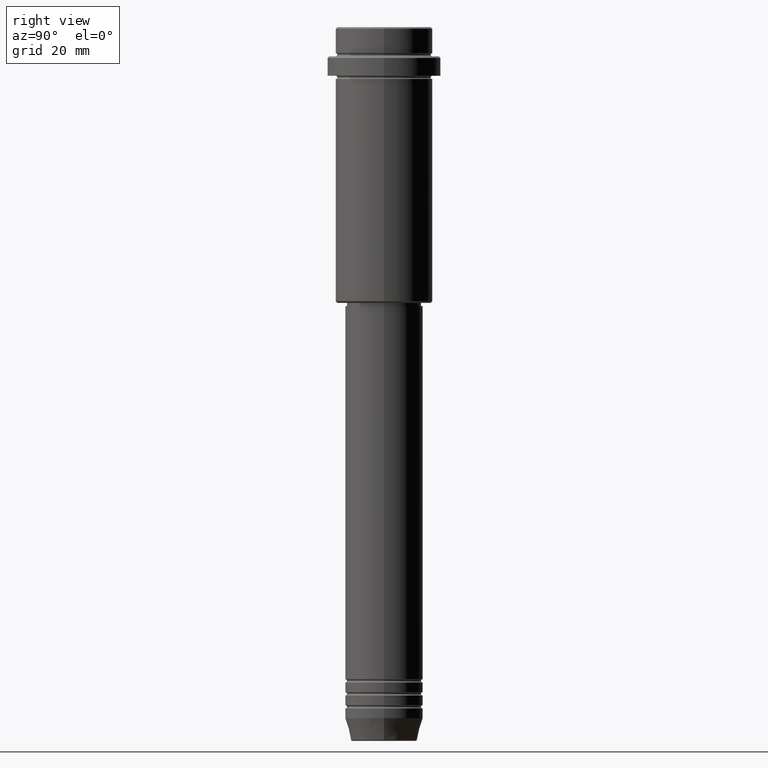
[diagram: clean part render]
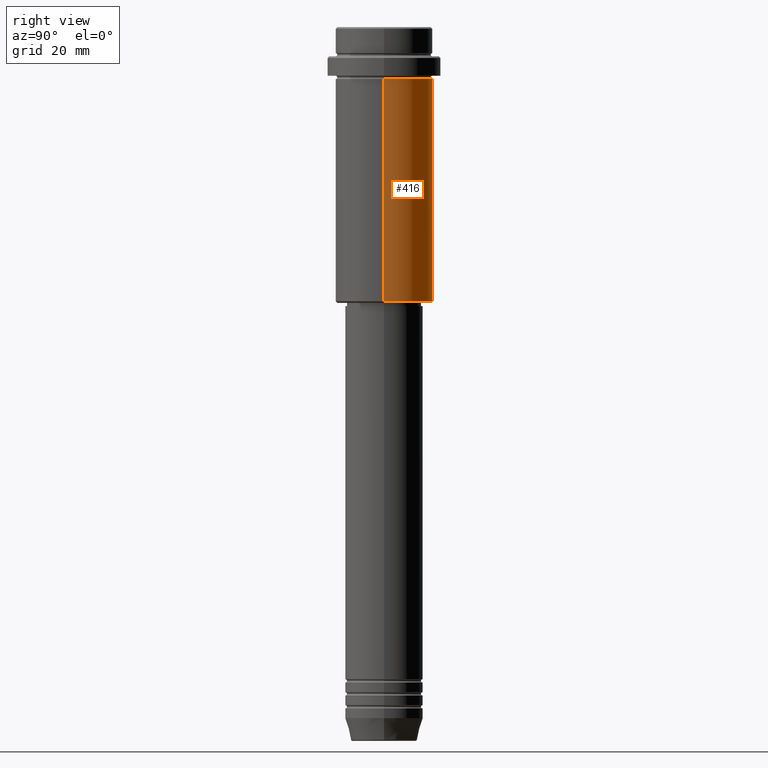
[diagram: same view with one face highlighted and labeled with its STEP entity id]
A machine part, right view. The second image highlights one B-rep face of the part: STEP entity #416.
In plain terms, the highlighted cylindrical surface (partial cylindrical patch) has radius 15 mm, axis along (-0, -0, 1).
Its self-contained STEP definition (entity closure, byte-faithful):
#25 = LINE ( 'NONE', #1326, #1128 ) ;
#31 = ORIENTED_EDGE ( 'NONE', *, *, #322, .F. ) ;
#72 = EDGE_LOOP ( 'NONE', ( #412, #192, #481, #31 ) ) ;
#121 = AXIS2_PLACEMENT_3D ( 'NONE', #1331, #454, #900 ) ;
#128 = AXIS2_PLACEMENT_3D ( 'NONE', #1301, #1393, #758 ) ;
#169 = DIRECTION ( 'NONE',  ( -0.000000000000000000, -0.000000000000000000, 1.000000000000000000 ) ) ;
#185 = CARTESIAN_POINT ( 'NONE',  ( 0.000000000000000000, 0.000000000000000000, -16.00000000000000000 ) ) ;
#192 = ORIENTED_EDGE ( 'NONE', *, *, #1385, .T. ) ;
#212 = LINE ( 'NONE', #874, #258 ) ;
#258 = VECTOR ( 'NONE', #1205, 1000.000000000000000 ) ;
#322 = EDGE_CURVE ( 'NONE', #1209, #1106, #212, .T. ) ;
#356 = CIRCLE ( 'NONE', #128, 15.00000000000000000 ) ;
#366 = CYLINDRICAL_SURFACE ( 'NONE', #121, 15.00000000000000000 ) ;
#412 = ORIENTED_EDGE ( 'NONE', *, *, #1231, .T. ) ;
#416 = ADVANCED_FACE ( 'NONE', ( #1340 ), #366, .T. ) ;
#454 = DIRECTION ( 'NONE',  ( -0.000000000000000000, -0.000000000000000000, 1.000000000000000000 ) ) ;
#475 = CARTESIAN_POINT ( 'NONE',  ( -15.00000000000000000, 1.836970198721029589E-15, -84.50000000000002842 ) ) ;
#481 = ORIENTED_EDGE ( 'NONE', *, *, #1024, .F. ) ;
#486 = CIRCLE ( 'NONE', #1353, 15.00000000000000178 ) ;
#490 = DIRECTION ( 'NONE',  ( 1.000000000000000000, 0.000000000000000000, 0.000000000000000000 ) ) ;
#657 = CARTESIAN_POINT ( 'NONE',  ( 15.00000000000000000, 0.000000000000000000, -84.50000000000002842 ) ) ;
#662 = VERTEX_POINT ( 'NONE', #717 ) ;
#717 = CARTESIAN_POINT ( 'NONE',  ( -15.00000000000000355, 1.836970198721029983E-15, -16.00000000000000000 ) ) ;
#758 = DIRECTION ( 'NONE',  ( -1.000000000000000000, 0.000000000000000000, 0.000000000000000000 ) ) ;
#874 = CARTESIAN_POINT ( 'NONE',  ( 15.00000000000000000, 0.000000000000000000, 0.000000000000000000 ) ) ;
#900 = DIRECTION ( 'NONE',  ( 1.000000000000000000, 0.000000000000000000, 0.000000000000000000 ) ) ;
#1024 = EDGE_CURVE ( 'NONE', #1106, #662, #486, .T. ) ;
#1048 = CARTESIAN_POINT ( 'NONE',  ( 15.00000000000000178, 0.000000000000000000, -16.00000000000000000 ) ) ;
#1106 = VERTEX_POINT ( 'NONE', #1048 ) ;
#1107 = DIRECTION ( 'NONE',  ( -0.000000000000000000, -0.000000000000000000, 1.000000000000000000 ) ) ;
#1128 = VECTOR ( 'NONE', #1107, 1000.000000000000000 ) ;
#1205 = DIRECTION ( 'NONE',  ( -0.000000000000000000, -0.000000000000000000, 1.000000000000000000 ) ) ;
#1209 = VERTEX_POINT ( 'NONE', #657 ) ;
#1231 = EDGE_CURVE ( 'NONE', #1209, #1402, #356, .T. ) ;
#1301 = CARTESIAN_POINT ( 'NONE',  ( 0.000000000000000000, 0.000000000000000000, -84.50000000000002842 ) ) ;
#1326 = CARTESIAN_POINT ( 'NONE',  ( -15.00000000000000000, 1.836970198721029589E-15, 0.000000000000000000 ) ) ;
#1331 = CARTESIAN_POINT ( 'NONE',  ( 0.000000000000000000, 0.000000000000000000, 0.000000000000000000 ) ) ;
#1340 = FACE_OUTER_BOUND ( 'NONE', #72, .T. ) ;
#1353 = AXIS2_PLACEMENT_3D ( 'NONE', #185, #169, #490 ) ;
#1385 = EDGE_CURVE ( 'NONE', #1402, #662, #25, .T. ) ;
#1393 = DIRECTION ( 'NONE',  ( -0.000000000000000000, -0.000000000000000000, 1.000000000000000000 ) ) ;
#1402 = VERTEX_POINT ( 'NONE', #475 ) ;